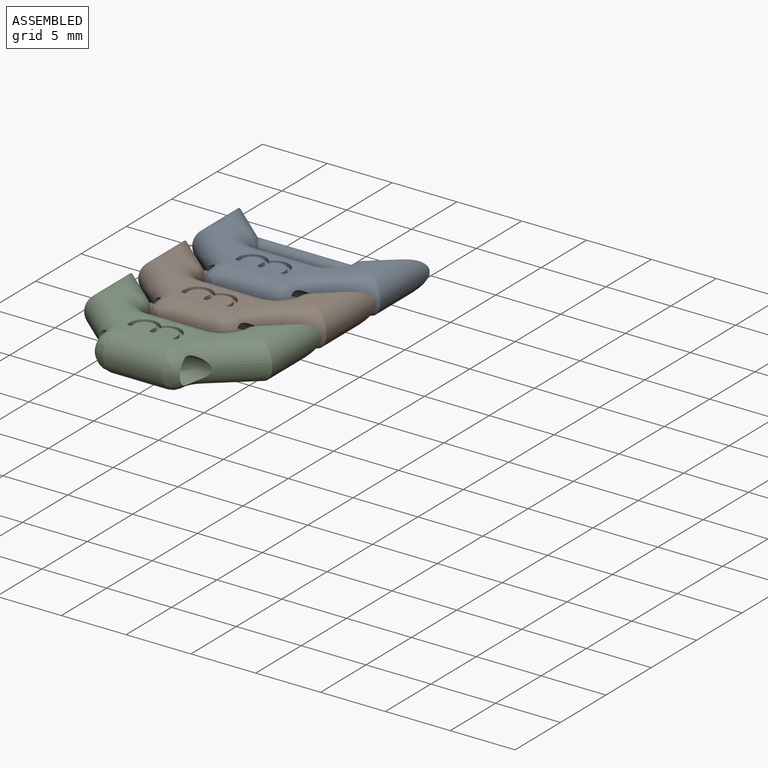
[diagram: assembled view]
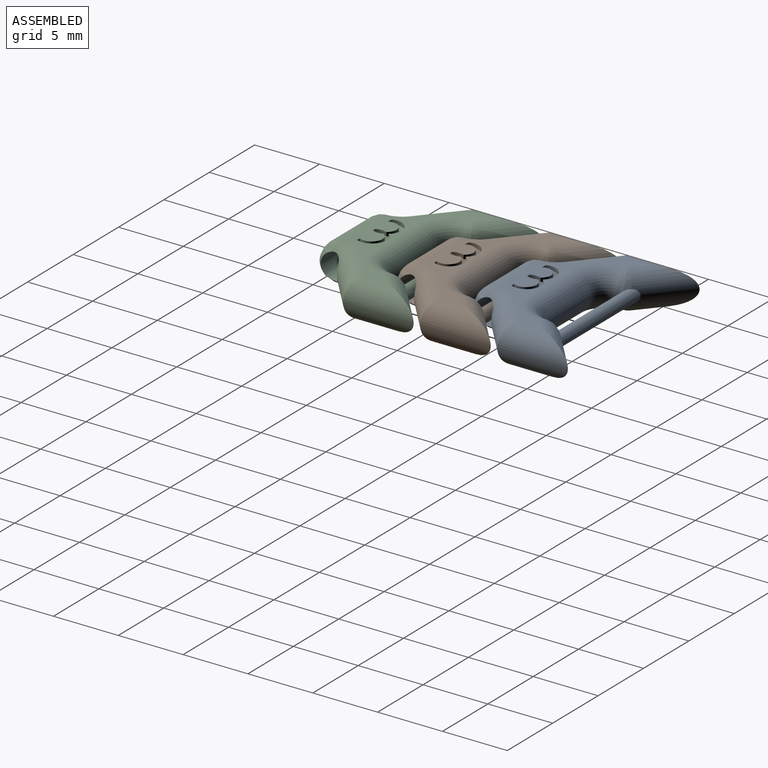
[diagram: assembled view, second angle]
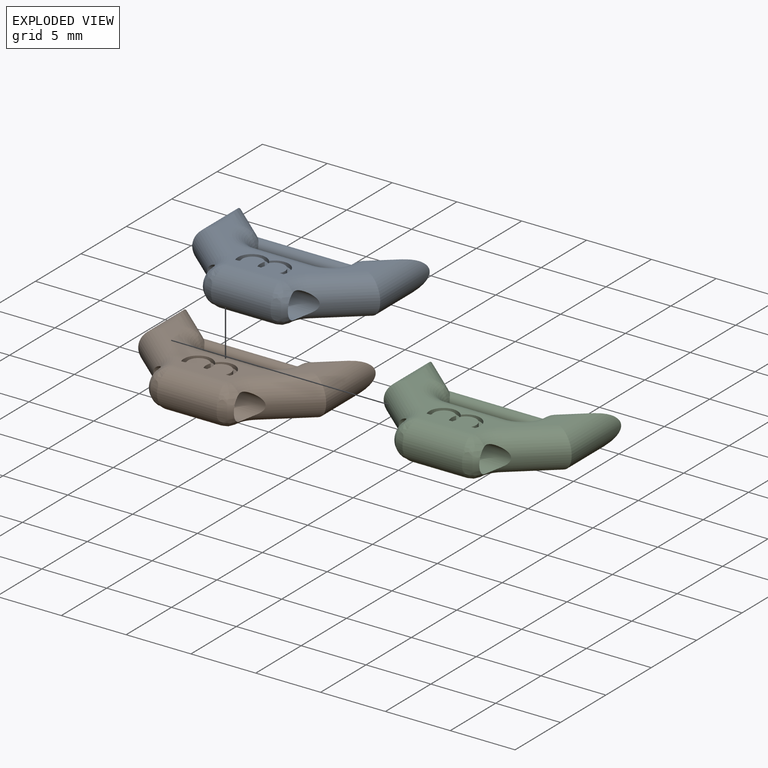
[diagram: exploded view]
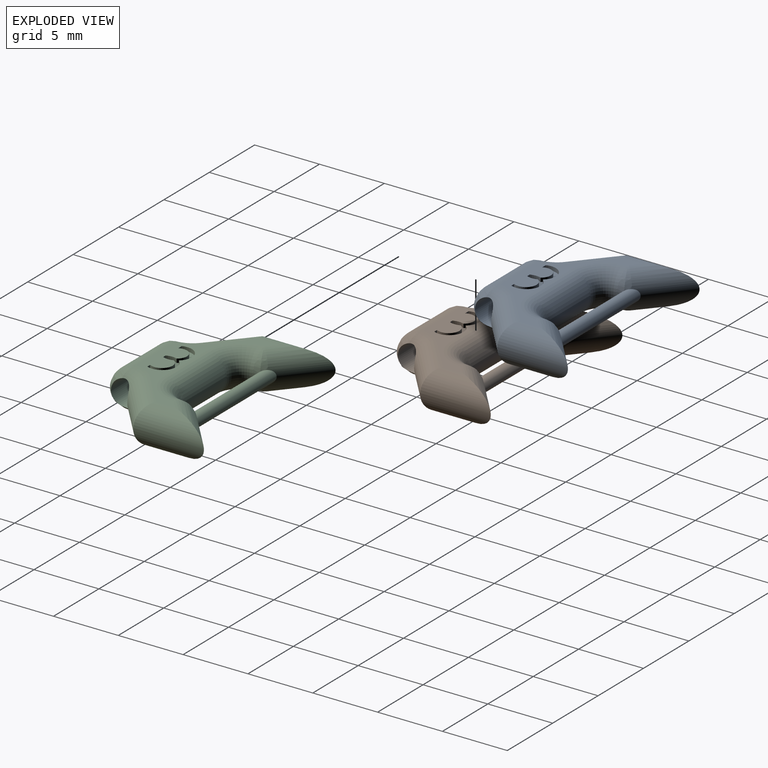
[diagram: exploded view, second angle]
ASSEMBLY  parts=3 mates=2
PART A: 42 faces, bbox 16.5x10.5x3 mm
  f0: bspline ~2.35x0.95mm, area 1.5mm2, adj f1,f38,f39,f40,f41
  f1: bspline ~1.31x0.92mm, area 0.3mm2, adj f0,f2,f41
  f2: torus R=2.7mm, axis (0,0,1), area 12.8mm2, adj f1,f3,f36,f37,f38,f39
  f3: plane 11.5x5.69mm, normal (0,0,1), area 14.5mm2, adj f2,f4,f9,f10,f11,f21,f22,f23
  f4: cylinder r=1.5mm len=4.31mm, axis (-0.76,0.65,0), area 14.4mm2, adj f3,f5,f6,f7,f25,f37,f40
  f5: bspline ~1.18x0.83mm, area 0.3mm2, adj f4,f7,f9
  f6: bspline ~1.31x0.92mm, area 0.3mm2, adj f4,f7,f9
  f7: bspline ~2.35x0.95mm, area 1.5mm2, adj f4,f5,f6,f8,f40
  f8: cylinder r=1.5mm len=1.97mm, axis (0,1,0), area 0mm2, adj f7,f9
  f9: torus R=2.7mm, axis (0,0,1), area 12.8mm2, adj f3,f5,f6,f8,f36,f37
  f10: cylinder r=1.5mm len=4.77mm, axis (0,1,0), area 16.8mm2, adj f3,f11,f37,f41
  f11: cylinder r=1.5mm len=3.78mm, axis (0.76,0.65,0), area 17.4mm2, adj f3,f10,f12,f16,f21,f37
  f12: torus R=2.7mm, axis (0,0,1), area 2.3mm2, adj f11,f13,f16,f37
  f13: bspline ~1.36x1.35mm, area 1.3mm2, adj f12,f14,f16,f22
  f14: bspline ~2.23x1.24mm, area 2.4mm2, adj f13,f15,f16,f22
  f15: bspline ~1.43x1.41mm, area 1.3mm2, adj f14,f16,f21,f22
  f16: cylinder r=1mm len=8.67mm, axis (1,0,0), area 44.2mm2, adj f11,f12,f13,f14,f15,f17,f18,f19
  f17: bspline ~2.23x1.24mm, area 2.4mm2, adj f16,f18,f20,f22
  f18: bspline ~1.36x1.35mm, area 1.3mm2, adj f16,f17,f22,f23
  f19: torus R=2.7mm, axis (0,0,1), area 2.3mm2, adj f16,f20,f24,f37
  f20: bspline ~1.36x1.35mm, area 1.3mm2, adj f16,f17,f19,f22
  f21: torus R=2.7mm, axis (0,0,1), area 2.3mm2, adj f3,f11,f15,f16
  f22: cylinder r=1.5mm len=4.53mm, axis (1,0,0), area 20.5mm2, adj f3,f13,f14,f15,f17,f18,f20,f37
  f23: torus R=2.7mm, axis (0,0,1), area 2.3mm2, adj f3,f16,f18,f24
  f24: cylinder r=1.5mm len=3.78mm, axis (0.76,-0.65,0), area 17.4mm2, adj f3,f16,f19,f23,f25,f37
  f25: cylinder r=1.5mm len=4.77mm, axis (0,-1,0), area 16.8mm2, adj f3,f4,f24,f37
  f26: cylinder r=1.1mm len=1.98mm, axis (0,0,1), area 1mm2, adj f3,f27,f28,f35
  f27: plane 3.92x1.54mm, normal (0,0,1), area 2.2mm2, adj f26,f28,f29,f30,f31,f32,f33,f34
  f28: cylinder r=1.09mm len=1.94mm, axis (0,0,1), area 0.9mm2, adj f3,f26,f27,f29
  f29: plane 0.38x0.3mm, normal (0,1,0), area 0.1mm2, adj f3,f27,f28,f30
  f30: cylinder r=0.78mm len=1.42mm, axis (0,0,1), area 0.7mm2, adj f3,f27,f29,f31
  f31: cylinder r=1.1mm len=0.83mm, axis (0,0,1), area 0.3mm2, adj f3,f27,f30,f32
  f32: plane 0.3x0.28mm, normal (0,1,0), area 0.1mm2, adj f3,f27,f31,f33
  f33: cylinder r=1.09mm len=0.83mm, axis (0,0,1), area 0.3mm2, adj f3,f27,f32,f34
  f34: cylinder r=0.83mm len=1.54mm, axis (0,0,1), area 0.8mm2, adj f3,f27,f33,f35
  f35: plane 0.3x0.3mm, normal (0,1,0), area 0.1mm2, adj f3,f26,f27,f34
  f36: cylinder r=1.5mm len=4.6mm, axis (-1,0,0), area 21.7mm2, adj f2,f3,f9,f37
  f37: plane 11.5x5.69mm, normal (0,0,-1), area 16.7mm2, adj f2,f4,f9,f10,f11,f12,f19,f22
  f38: cylinder r=1.5mm len=1.97mm, axis (0,-1,0), area 0mm2, adj f0,f2
  f39: bspline ~1.31x0.92mm, area 0.3mm2, adj f0,f2,f41
  f40: cylinder r=0.5mm len=7.96mm, axis (-1,0,0), area 25mm2, adj f0,f4,f7,f41
  f41: cylinder r=1.5mm len=4.31mm, axis (-0.76,-0.65,0), area 14.4mm2, adj f0,f1,f3,f10,f37,f39,f40
PART B: same geometry as A
PART C: same geometry as A
PLACE A t=(10.59,13.21,9.29)mm
PLACE B t=(10.59,7.26,9.29)mm
PLACE C t=(10.59,1.31,9.29)mm
MATE revolute B.f16 <-> C.f40  axis (1,0,0) through (10.59,8.76,9.29)mm
MATE revolute A.f16 <-> B.f40  axis (1,0,0) through (10.59,14.71,9.29)mm
